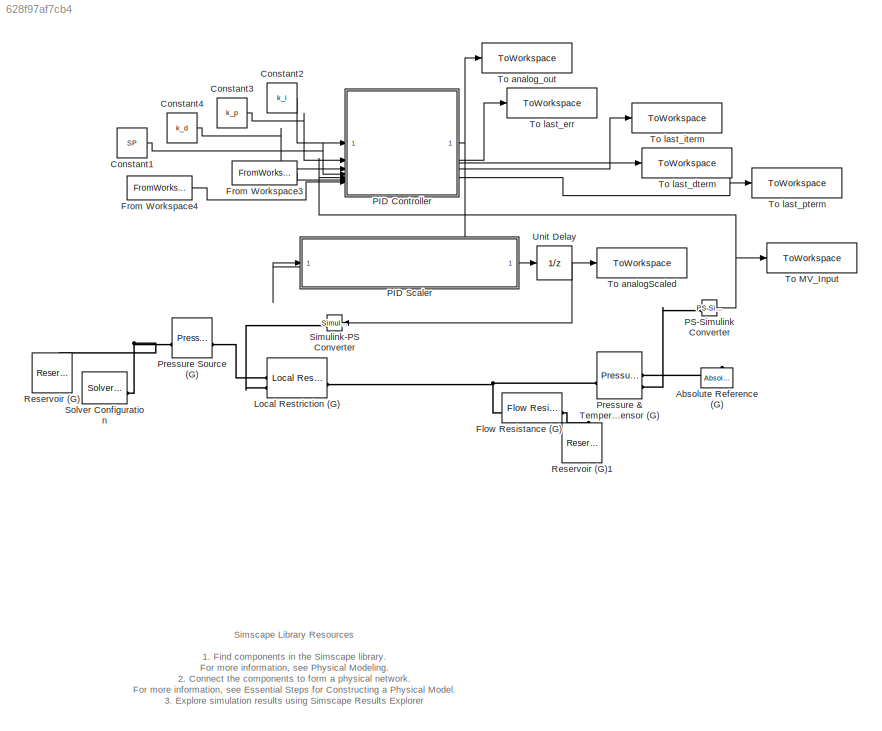
MODEL slx_628f97af7cb4
KIND model
CONFIG AbsTol = 1e-3
CONFIG EnableMultiTasking = off
CONFIG FixedStep = 1e-3
CONFIG InitFcn = init_params
CONFIG MaxStep = auto
CONFIG MinStep = auto
CONFIG RelTol = 1e-3
CONFIG SampleTimeConstraint = Unconstrained
CONFIG SolverName = FixedStepAuto
CONFIG StartTime = 0.0
CONFIG StopTime = 0.25
BLOCK [Reference] Absolute Reference (G)  REF=fl_lib/Gas/Elements/Absolute Reference
(G)
  NameLocation = right
  SourceBlock = fl_lib/Gas/Elements/Absolute Reference\n(G)
  SourceType = Absolute Reference\n(G)
BLOCK [Constant] Constant1
  Value = SP
BLOCK [Constant] Constant2
  Value = k_i
BLOCK [Constant] Constant3
  Value = k_p
BLOCK [Constant] Constant4
  Value = k_d
BLOCK [Reference] Flow Resistance (G)  REF=fl_lib/Gas/Elements/Flow Resistance (G)
  SourceBlock = fl_lib/Gas/Elements/Flow Resistance (G)
  SourceType = Flow Resistance (G)
BLOCK [FromWorkspace] From Workspace3
  VariableName = t_Last_error
BLOCK [FromWorkspace] From Workspace4
  VariableName = t_Last_iterm
BLOCK [Reference] Local Restriction (G)  REF=fl_lib/Gas/Elements/Local Restriction
(G)
  SourceBlock = fl_lib/Gas/Elements/Local Restriction\n(G)
  SourceType = Local Restriction\n(G)
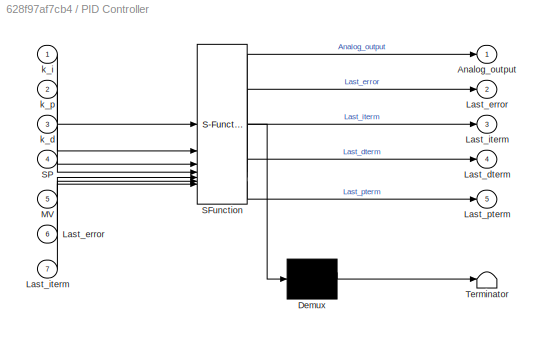
BLOCK [SubSystem] PID Controller
  ErrorFcn = Stateflow.Translate.translate
  PermitHierarchicalResolution = ExplicitOnly
  SFBlockType = MATLAB Function
  TreatAsAtomicUnit = on
BLOCK [Demux] PID Controller/ Demux 
  Outputs = 1
BLOCK [S-Function] PID Controller/ SFunction 
  EnableBusSupport = off
  FunctionName = sf_sfun
  PortCounts = [7 6]
  SFcnIsStateOwnerBlock = off
  SFunctionDeploymentMode = off
  Tag = Stateflow S-Function 4
BLOCK [Terminator] PID Controller/ Terminator 
BLOCK [Outport] PID Controller/Analog_output
BLOCK [Outport] PID Controller/Last_dterm
  Port = 4
BLOCK [Outport] PID Controller/Last_error
  Port = 2
BLOCK [Inport] PID Controller/Last_error 
  Port = 6
BLOCK [Outport] PID Controller/Last_iterm
  Port = 3
BLOCK [Inport] PID Controller/Last_iterm 
  Port = 7
BLOCK [Outport] PID Controller/Last_pterm
  Port = 5
BLOCK [Inport] PID Controller/MV
  Port = 5
BLOCK [Inport] PID Controller/SP
  Port = 4
BLOCK [Inport] PID Controller/k_d
  Port = 3
BLOCK [Inport] PID Controller/k_i
BLOCK [Inport] PID Controller/k_p
  Port = 2
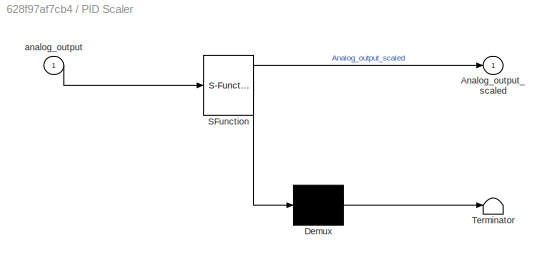
BLOCK [SubSystem] PID Scaler
  ErrorFcn = Stateflow.Translate.translate
  PermitHierarchicalResolution = ExplicitOnly
  SFBlockType = MATLAB Function
  TreatAsAtomicUnit = on
BLOCK [Demux] PID Scaler/ Demux 
  Outputs = 1
BLOCK [S-Function] PID Scaler/ SFunction 
  EnableBusSupport = off
  FunctionName = sf_sfun
  PortCounts = [1 2]
  SFcnIsStateOwnerBlock = off
  SFunctionDeploymentMode = off
  Tag = Stateflow S-Function 5
BLOCK [Terminator] PID Scaler/ Terminator 
BLOCK [Outport] PID Scaler/Analog_output_scaled
BLOCK [Inport] PID Scaler/analog_output
BLOCK [Reference] PS-Simulink Converter  REF=nesl_utility/PS-Simulink
Converter
  SourceBlock = nesl_utility/PS-Simulink\nConverter
  SourceType = PS-Simulink\nConverter
BLOCK [Reference] Pressure & Temperature Sensor (G)  REF=fl_lib/Gas/Sensors/Pressure &
Temperature Sensor
(G)
  SourceBlock = fl_lib/Gas/Sensors/Pressure &\nTemperature Sensor\n(G)
  SourceType = Pressure &\nTemperature Sensor\n(G)
BLOCK [Reference] Pressure Source (G)  REF=fl_lib/Gas/Sources/Pressure Source (G)
  SourceBlock = fl_lib/Gas/Sources/Pressure Source (G)
  SourceType = Pressure Source (G)
BLOCK [Reference] Reservoir (G)  REF=fl_lib/Gas/Elements/Reservoir (G)
  NameLocation = right
  SourceBlock = fl_lib/Gas/Elements/Reservoir (G)
  SourceType = Reservoir (G)
BLOCK [Reference] Reservoir (G)1  REF=fl_lib/Gas/Elements/Reservoir (G)
  NameLocation = right
  SourceBlock = fl_lib/Gas/Elements/Reservoir (G)
  SourceType = Reservoir (G)
BLOCK [Reference] Simulink-PS Converter  REF=nesl_utility/Simulink-PS
Converter
  NameLocation = top
  SourceBlock = nesl_utility/Simulink-PS\nConverter
  SourceType = Simulink-PS\nConverter
BLOCK [Reference] Solver Configuration  REF=nesl_utility/Solver
Configuration
  SourceBlock = nesl_utility/Solver\nConfiguration
  SourceType = Solver\nConfiguration
BLOCK [ToWorkspace] To MV_Input
  FixptAsFi = on
  MaxDataPoints = inf
  SampleTime = -1
  SaveFormat = Timeseries
  VariableName = MV_input
BLOCK [ToWorkspace] To analogScaled
  FixptAsFi = on
  MaxDataPoints = inf
  SampleTime = -1
  SaveFormat = Timeseries
  VariableName = analog_output_scaled
BLOCK [ToWorkspace] To analog_out
  FixptAsFi = on
  MaxDataPoints = inf
  SampleTime = -1
  SaveFormat = Timeseries
  VariableName = Analog_output
BLOCK [ToWorkspace] To last_dterm
  FixptAsFi = on
  MaxDataPoints = inf
  SampleTime = -1
  SaveFormat = Timeseries
  VariableName = last_dterm
BLOCK [ToWorkspace] To last_err
  FixptAsFi = on
  MaxDataPoints = inf
  SampleTime = -1
  SaveFormat = Timeseries
  VariableName = t_Last_error
BLOCK [ToWorkspace] To last_iterm
  FixptAsFi = on
  MaxDataPoints = inf
  SampleTime = -1
  SaveFormat = Timeseries
  VariableName = t_Last_iterm
BLOCK [ToWorkspace] To last_pterm
  FixptAsFi = on
  MaxDataPoints = inf
  SampleTime = -1
  SaveFormat = Timeseries
  VariableName = last_pterm
BLOCK [UnitDelay] Unit Delay
  HasFrameUpgradeWarning = on
  SampleTime = -1
ANNOTATION (root): 1. Find components in the Simscape library . For more information, see Physical Modeling . 2. Connect the components to form a physical network. For more information, see Essential Steps for Constructing a Physical Model . 3. Explore simulation results using Simscape Results Explorer
ANNOTATION (root): Simscape Library Resources
LINE Constant1:1 -> PID Controller:4
LINE Constant2:1 -> PID Controller:1
LINE Constant3:1 -> PID Controller:2
LINE Constant4:1 -> PID Controller:3
LINE From Workspace3:1 -> PID Controller:6
LINE From Workspace4:1 -> PID Controller:7
NET PID Controller:1 -> PID Scaler:1, To analog_out:1
LINE PID Controller:2 -> To last_err:1
LINE PID Controller:3 -> To last_iterm:1
LINE PID Controller:4 -> To last_dterm:1
LINE PID Controller:5 -> To last_pterm:1
LINE PID Scaler:1 -> Unit Delay:1
NET PS-Simulink Converter:1 -> PID Controller:5, To MV_Input:1
NET Unit Delay:1 -> Simulink-PS Converter:1, To analogScaled:1
PLINE Absolute Reference (G):LConn1 -- Pressure & Temperature Sensor (G):RConn1
PNET net1: Flow Resistance (G):LConn1 -- Local Restriction (G):RConn1 -- Pressure & Temperature Sensor (G):LConn1
PLINE Flow Resistance (G):RConn1 -- Reservoir (G)1:LConn1
PLINE Local Restriction (G):LConn1 -- Pressure Source (G):RConn1
PLINE Local Restriction (G):LConn2 -- Simulink-PS Converter:RConn1
PLINE PS-Simulink Converter:LConn1 -- Pressure & Temperature Sensor (G):RConn2
PNET net2: Pressure Source (G):LConn1 -- Reservoir (G):LConn1 -- Solver Configuration:RConn1
note: NET lines group one-source signal fan-out (src -> all destinations, sorted); 1:1 wires keep LINE; PNET lines group multi-terminal physical nets as a canonical sorted terminal list (undirected conserving connections); 2-terminal nets keep the pairwise PLINE form
CHART PID Controller states=1 transitions=1
  STATE_LABEL 'eML_blk_kernel()'
  STATE_LABEL 'SCRIPT:\nfunction [Analog_output, Last_error, Last_iterm, Last_dterm, Last_pterm] = PID(k_i, k_p, k_d, SP, MV, Last_error, Last_iterm)\n% t function [Analog_output, Last_error, Last_iterm, Last_dterm, Last_pterm]= PID(k_i, k_p, k_d, SP, MV, Last_error, Last_iterm)\n\n%convert MV from Pa to PSI\n% MV_psi = MV * 0.0001450377;\n\n\nerror = SP - MV;\npterm = k_p * error;\niterm = k_i * error + Last_iterm;\ndterm...<+273ch>'
CHART PID Scaler states=1 transitions=1
  STATE_LABEL 'eML_blk_kernel()'
  STATE_LABEL 'SCRIPT:\nfunction Analog_output_scaled = PIDScaler(analog_output)\n\n% Define limits\nA_min = 1e-6;\nA_max = 0.009;\n\n% Normalize PID output\n% S = max(min(analog_output, 1), 0);  % Clamp to [0, 1]\n\n% S = 1 - S; %invert\n\n% Scale to physical area range\n% Analog_output_scaled = A_min + S * (A_max - A_min);\nAnalog_output_scaled = max(min(analog_output, A_max), A_min);\n\n\nend\n\n'
CHART  states=0 transitions=0
CHART  states=0 transitions=0
